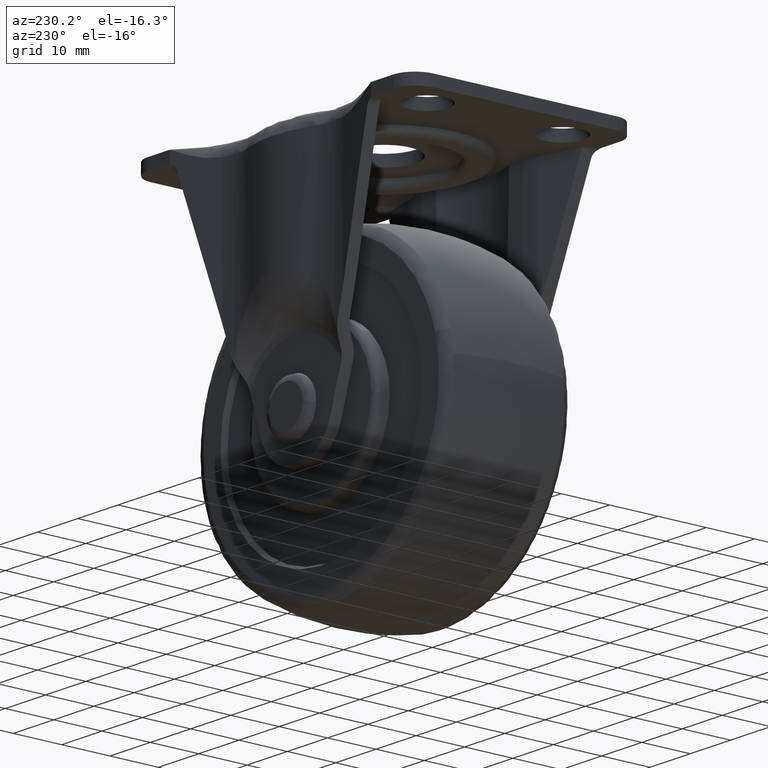
[diagram: clean part render]
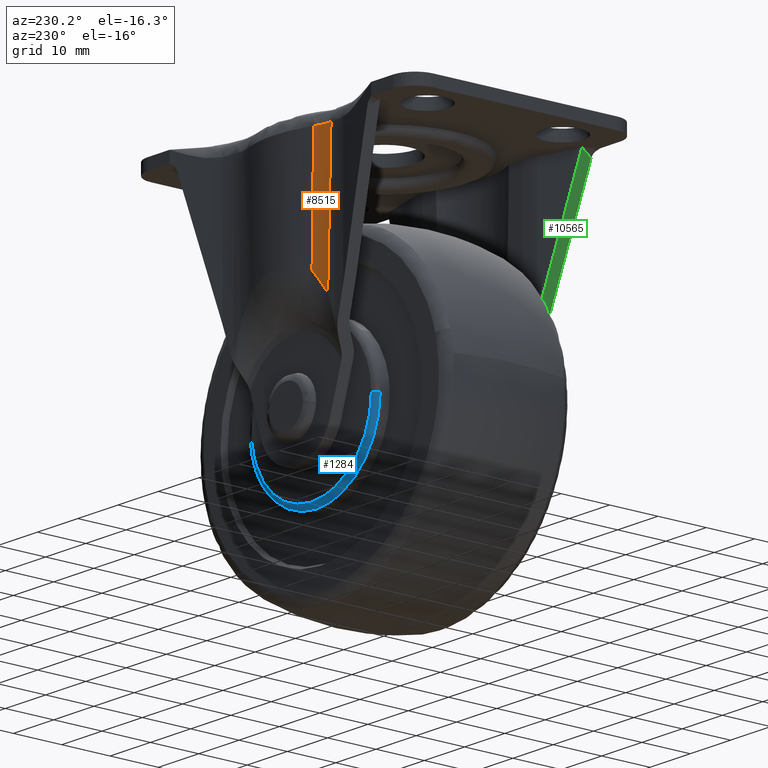
[diagram: same view with three faces highlighted in distinct colors, each labeled with its STEP entity id]
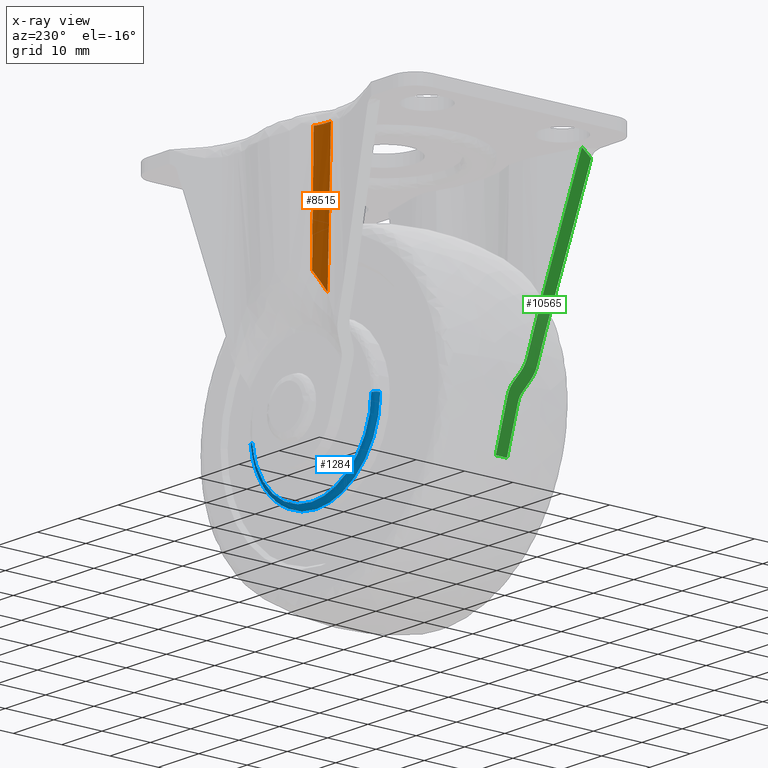
[diagram: x-ray of the same camera — body ghosted, the three highlighted faces saturated]
A machine part, auxiliary view with three faces highlighted in distinct colors.
The next image is the same camera in x-ray (body ghosted, the three faces saturated) — at least one of them is partly hidden behind the body in this view.
Their STEP definitions:

[orange] entity #8515 — the highlighted face is a freeform B-spline surface patch.
#4557=CARTESIAN_POINT('',(-11.561934130171460,20.599998000000049,44.500000000000000));
#4558=VERTEX_POINT('',#4557);
#4641=CARTESIAN_POINT('',(-8.028181929857791,21.244330268261450,44.470080181659107));
#4642=VERTEX_POINT('',#4641);
#4655=CARTESIAN_POINT('',(-11.561934130171460,20.599998000000049,44.500000000000000));
#4656=CARTESIAN_POINT('',(-10.358023529819670,20.600056693940779,44.491274623734590));
#4657=CARTESIAN_POINT('',(-9.154596717702514,20.819375814244129,44.481086099227788));
#4658=CARTESIAN_POINT('',(-8.028181929857791,21.244330268261450,44.470080181659107));
#4659=B_SPLINE_CURVE_WITH_KNOTS('',3,(#4655,#4656,#4657,#4658),.UNSPECIFIED.,.F.,.U.,(4,4),(0.000000014332358,3.611601034553802),.UNSPECIFIED.);
#4660=EDGE_CURVE('',#4558,#4642,#4659,.T.);
#7235=CARTESIAN_POINT('',(-7.544556676752640,21.166837346889700,20.666595368473949));
#7236=VERTEX_POINT('',#7235);
#7412=CARTESIAN_POINT('',(-10.734620166687920,20.599998000000049,16.391729945008951));
#7413=VERTEX_POINT('',#7412);
#7421=CARTESIAN_POINT('',(-7.544556676752640,21.166837346889700,20.666595368473949));
#7422=CARTESIAN_POINT('',(-7.795371917203379,21.074777466708039,20.305089059248790));
#7423=CARTESIAN_POINT('',(-8.052164150084492,20.992911542903119,19.946691303963050));
#7424=CARTESIAN_POINT('',(-8.574175598128923,20.851511220357182,19.233223201396680));
#7425=CARTESIAN_POINT('',(-8.839371733969863,20.791976264431330,18.878135705348960));
#7426=CARTESIAN_POINT('',(-9.374830763266772,20.696379916207508,18.168629164472659));
#7427=CARTESIAN_POINT('',(-9.645072002536605,20.660307963693239,17.814195360750830));
#7428=CARTESIAN_POINT('',(-10.188154108277390,20.612126959661939,17.104090254858662));
#7429=CARTESIAN_POINT('',(-10.460974156398890,20.599998000000049,16.748406057045720));
#7430=CARTESIAN_POINT('',(-10.734620166687920,20.599998000000049,16.391729945008951));
#7431=B_SPLINE_CURVE_WITH_KNOTS('',3,(#7421,#7422,#7423,#7424,#7425,#7426,#7427,#7428,#7429,#7430),.UNSPECIFIED.,.F.,.U.,(4,2,2,2,4),(0.0,0.250000000000000,0.500000000000000,0.750000000000000,1.0),.UNSPECIFIED.);
#7432=EDGE_CURVE('',#7236,#7413,#7431,.T.);
#8479=CARTESIAN_POINT('',(-11.770473089419269,20.601346423444088,45.197178526192793));
#8480=CARTESIAN_POINT('',(-10.901427680453549,20.601390013425998,15.665922846573828));
#8481=CARTESIAN_POINT('',(-9.756665704853257,20.564181688519561,45.256440768918772));
#8482=CARTESIAN_POINT('',(-8.887620295887539,20.564225278501485,15.725185089299796));
#8483=CARTESIAN_POINT('',(-7.885631629930292,21.310179740982782,45.311502636538378));
#8484=CARTESIAN_POINT('',(-7.016586220964573,21.310223330964700,15.780246956919402));
#8492=(BOUNDED_SURFACE()B_SPLINE_SURFACE(1,2,((#8479,#8481,#8483),(#8480,#8482,#8484)),.UNSPECIFIED.,.F.,.F.,.U.)B_SPLINE_SURFACE_WITH_KNOTS((2,2),(3,3),(0.0,29.544040040924880),(0.0,3.989942884884494),.UNSPECIFIED.)GEOMETRIC_REPRESENTATION_ITEM()RATIONAL_B_SPLINE_SURFACE(((0.997975400268469,0.977384512652586,0.996086507141195),(0.997975400268469,0.977384512652586,0.996086507141195)))REPRESENTATION_ITEM('')SURFACE());
#8493=CARTESIAN_POINT('',(-11.561934130171460,20.599998000000049,44.500000000000000));
#8494=CARTESIAN_POINT('',(-11.150290302221936,20.599998000000049,29.924386092934352));
#8495=CARTESIAN_POINT('',(-10.734620166687920,20.599998000000049,16.391729945008951));
#8503=(BOUNDED_CURVE()B_SPLINE_CURVE(2,(#8493,#8494,#8495),.UNSPECIFIED.,.F.,.U.)CURVE()GEOMETRIC_REPRESENTATION_ITEM()QUASI_UNIFORM_CURVE()RATIONAL_B_SPLINE_CURVE((1.0,0.999909722322717,1.0))REPRESENTATION_ITEM(''));
#8504=EDGE_CURVE('',#4558,#7413,#8503,.T.);
#8505=ORIENTED_EDGE('',*,*,#8504,.F.);
#8506=ORIENTED_EDGE('',*,*,#4660,.T.);
#8507=CARTESIAN_POINT('',(-7.544556676752640,21.166837346889700,20.666595368473949));
#8508=CARTESIAN_POINT('',(-8.028181929857791,21.244330268261450,44.470080181659107));
#8509=QUASI_UNIFORM_CURVE('',1,(#8507,#8508),.UNSPECIFIED.,.F.,.U.);
#8510=EDGE_CURVE('',#7236,#4642,#8509,.T.);
#8511=ORIENTED_EDGE('',*,*,#8510,.F.);
#8512=ORIENTED_EDGE('',*,*,#7432,.T.);
#8513=EDGE_LOOP('',(#8505,#8506,#8511,#8512));
#8514=FACE_OUTER_BOUND('',#8513,.T.);
#8515=ADVANCED_FACE('',(#8514),#8492,.F.);

[blue] entity #1284 — the highlighted face is a freeform B-spline surface patch.
#280=CARTESIAN_POINT('',(-12.102355352157110,14.000000000440309,-10.235010089399969));
#281=VERTEX_POINT('',#280);
#287=CARTESIAN_POINT('',(0.0,14.0,-15.849998000000051));
#288=VERTEX_POINT('',#287);
#289=CARTESIAN_POINT('',(-12.102355352157110,14.000000000440309,-10.235010089399969));
#290=CARTESIAN_POINT('',(-11.592925379942359,14.000000000393079,-10.837410106185891));
#291=CARTESIAN_POINT('',(-10.332707195686330,14.000000000292459,-12.119934785553021));
#292=CARTESIAN_POINT('',(-8.286995466890614,14.000000000176950,-13.594166374166001));
#293=CARTESIAN_POINT('',(-5.841098041654506,14.000000000081410,-14.810700857305120));
#294=CARTESIAN_POINT('',(-3.155716367790106,14.000000000016721,-15.637429024217139));
#295=CARTESIAN_POINT('',(-1.075830281838064,13.999999999999959,-15.850157354550110));
#296=CARTESIAN_POINT('',(0.0,14.0,-15.849998000000051));
#297=B_SPLINE_CURVE_WITH_KNOTS('',3,(#289,#290,#291,#292,#293,#294,#295,#296),.UNSPECIFIED.,.F.,.U.,(4,1,1,1,1,4),(0.000000062348022,2.366809367753298,5.379153376434996,7.530757317715683,10.543126570111291,13.770609616484711),.UNSPECIFIED.);
#298=EDGE_CURVE('',#281,#288,#297,.T.);
#300=CARTESIAN_POINT('',(15.743987488116799,14.000000001253859,-1.830107803935753));
#301=VERTEX_POINT('',#300);
#302=CARTESIAN_POINT('',(0.0,14.0,-15.849998000000051));
#303=CARTESIAN_POINT('',(1.141142202064945,14.0,-15.850192431465009));
#304=CARTESIAN_POINT('',(2.942832949893051,14.000000000017460,-15.654529660506819));
#305=CARTESIAN_POINT('',(5.488618511332461,14.000000000082609,-14.926557593791060));
#306=CARTESIAN_POINT('',(7.743605180257773,14.000000000172840,-13.917961596818561));
#307=CARTESIAN_POINT('',(10.147261869047970,14.000000000316909,-12.304771932241120));
#308=CARTESIAN_POINT('',(12.070266052312560,14.000000000489059,-10.385605982694090));
#309=CARTESIAN_POINT('',(13.822548358031780,14.000000000707050,-7.939564628020256));
#310=CARTESIAN_POINT('',(15.109932348337569,14.000000000952401,-5.202880231575397));
#311=CARTESIAN_POINT('',(15.619260557570970,14.000000001157780,-2.903954940033430));
#312=CARTESIAN_POINT('',(15.743987488116799,14.000000001253859,-1.830107803935753));
#313=B_SPLINE_CURVE_WITH_KNOTS('',3,(#302,#303,#304,#305,#306,#307,#308,#309,#310,#311,#312),.UNSPECIFIED.,.F.,.U.,(4,1,1,1,1,1,1,1,4),(0.000000191770784,3.423385169727744,5.405396912542365,7.927955748239622,10.810816775669450,14.054014963014470,16.036020912844482,19.819808024999030,23.063043920838659),.UNSPECIFIED.);
#314=EDGE_CURVE('',#288,#301,#313,.T.);
#432=CARTESIAN_POINT('',(-15.849998000000030,14.000000001242871,1.329732E-014));
#433=VERTEX_POINT('',#432);
#444=CARTESIAN_POINT('',(-15.849998000000030,14.000000001242871,1.329732E-014));
#445=CARTESIAN_POINT('',(-15.850054437280511,14.000000001174699,-0.869267001041705));
#446=CARTESIAN_POINT('',(-15.692333632879150,14.000000001024761,-2.781635548227410));
#447=CARTESIAN_POINT('',(-14.949939197750201,14.000000000808731,-5.536830444842117));
#448=CARTESIAN_POINT('',(-13.710623788875649,14.000000000607351,-8.103900401832249));
#449=CARTESIAN_POINT('',(-12.663722993297320,14.000000000492379,-9.571314024002165));
#450=CARTESIAN_POINT('',(-12.102355352157110,14.000000000440309,-10.235010089399969));
#451=B_SPLINE_CURVE_WITH_KNOTS('',3,(#444,#445,#446,#447,#448,#449,#450),.UNSPECIFIED.,.F.,.U.,(4,1,1,1,4),(0.000000049035384,2.607811468752139,5.737153831420167,8.518859104836903,11.126670524553530),.UNSPECIFIED.);
#452=EDGE_CURVE('',#433,#281,#451,.T.);
#1163=CARTESIAN_POINT('',(14.750675862214610,15.0,-1.714643576496306));
#1164=VERTEX_POINT('',#1163);
#1182=CARTESIAN_POINT('',(-14.849998000761261,15.0,1.905168E-015));
#1183=VERTEX_POINT('',#1182);
#1198=CARTESIAN_POINT('',(-14.849998000761261,15.0,1.905168E-015));
#1199=CARTESIAN_POINT('',(-14.964531479929001,15.000064449765580,2.047854E-015));
#1200=CARTESIAN_POINT('',(-15.209970188869260,14.957409409372151,2.787572E-015));
#1201=CARTESIAN_POINT('',(-15.539097167785760,14.760324088268190,5.198050E-015));
#1202=CARTESIAN_POINT('',(-15.787404796800789,14.425217961065449,8.907001E-015));
#1203=CARTESIAN_POINT('',(-15.850226046793461,14.147313547470850,1.180375E-014));
#1204=CARTESIAN_POINT('',(-15.849998000000030,14.000000001242871,1.329732E-014));
#1205=B_SPLINE_CURVE_WITH_KNOTS('',3,(#1198,#1199,#1200,#1201,#1202,#1203,#1204),.UNSPECIFIED.,.F.,.U.,(4,1,1,1,4),(0.000000757161007,0.343635985599351,0.736428528989942,1.129111887145325,1.570953882771372),.UNSPECIFIED.);
#1206=EDGE_CURVE('',#1183,#433,#1205,.T.);
#1211=CARTESIAN_POINT('',(14.750675862214610,15.0,-1.714643576496306));
#1212=CARTESIAN_POINT('',(14.864443827296340,15.000065619684250,-1.727868157634291));
#1213=CARTESIAN_POINT('',(15.108237393838641,14.957408906491720,-1.756207135126683));
#1214=CARTESIAN_POINT('',(15.435160445312899,14.760321611843819,-1.794209224886114));
#1215=CARTESIAN_POINT('',(15.681836053785201,14.425225331002130,-1.822883215827446));
#1216=CARTESIAN_POINT('',(15.744195825428969,14.147307329159750,-1.830132021413633));
#1217=CARTESIAN_POINT('',(15.743987488116799,14.000000001253859,-1.830107803935753));
#1218=B_SPLINE_CURVE_WITH_KNOTS('',3,(#1211,#1212,#1213,#1214,#1215,#1216,#1217),.UNSPECIFIED.,.F.,.U.,(4,1,1,1,4),(0.000000757222607,0.343635984669247,0.736428526960925,1.129111883897612,1.570953878278678),.UNSPECIFIED.);
#1219=EDGE_CURVE('',#1164,#301,#1218,.T.);
#1224=CARTESIAN_POINT('',(-14.780647541563383,14.997592358588729,2.639747E-015));
#1225=CARTESIAN_POINT('',(-14.780647541563381,14.997592358588731,-14.780647541563377));
#1226=CARTESIAN_POINT('',(-1.810047E-015,14.997592358588729,-14.780647541563383));
#1227=CARTESIAN_POINT('',(13.162043968610359,14.997592358588738,-14.780647541563383));
#1228=CARTESIAN_POINT('',(14.681789231815017,14.997592358588726,-1.706636077341727));
#1229=CARTESIAN_POINT('',(-15.927737255922706,15.077335549155372,2.709984E-015));
#1230=CARTESIAN_POINT('',(-15.927737255922709,15.077335549155370,-15.927737255922706));
#1231=CARTESIAN_POINT('',(-1.950521E-015,15.077335549155372,-15.927737255922706));
#1232=CARTESIAN_POINT('',(14.183517839351284,15.077335549155370,-15.927737255922706));
#1233=CARTESIAN_POINT('',(15.821206795818789,15.077335549155373,-1.839083907179241));
#1234=CARTESIAN_POINT('',(-15.847564305950563,13.930275791634665,2.705075E-015));
#1235=CARTESIAN_POINT('',(-15.847564305950565,13.930275791634662,-15.847564305950565));
#1236=CARTESIAN_POINT('',(-1.940703E-015,13.930275791634665,-15.847564305950563));
#1237=CARTESIAN_POINT('',(14.112124492770278,13.930275791634656,-15.847564305950563));
#1238=CARTESIAN_POINT('',(15.741570071495728,13.930275791634662,-1.829826799297828));
#1246=(BOUNDED_SURFACE()B_SPLINE_SURFACE(2,2,((#1224,#1229,#1234),(#1225,#1230,#1235),(#1226,#1231,#1236),(#1227,#1232,#1237),(#1228,#1233,#1238)),.UNSPECIFIED.,.F.,.F.,.U.)B_SPLINE_SURFACE_WITH_KNOTS((3,2,3),(3,3),(0.0,26.257104264417951,50.413640187682468),(0.0,1.822370214151249),.UNSPECIFIED.)GEOMETRIC_REPRESENTATION_ITEM()RATIONAL_B_SPLINE_SURFACE(((0.915966572560864,0.599412953101705,0.910892951216569),(0.647686174797987,0.423848963869270,0.644098582740263),(0.915966572560864,0.599412953101705,0.910892951216569),(0.669148606619017,0.437894083007864,0.665442132218368),(0.876475698010168,0.573569933886690,0.871620820176857)))REPRESENTATION_ITEM('')SURFACE());
#1247=CARTESIAN_POINT('',(0.0,15.0,-14.849998000000021));
#1248=VERTEX_POINT('',#1247);
#1249=CARTESIAN_POINT('',(0.0,15.0,-14.849998000000021));
#1250=CARTESIAN_POINT('',(0.844045544589477,15.000000000000011,-14.850063589847631));
#1251=CARTESIAN_POINT('',(2.475837228092245,15.000000000000011,-14.710450657235070));
#1252=CARTESIAN_POINT('',(5.320062867947098,15.0,-13.984347490664630));
#1253=CARTESIAN_POINT('',(7.658811440467137,15.000000000000030,-12.824501696818549));
#1254=CARTESIAN_POINT('',(9.779133114691225,14.999999999999970,-11.237890645927630));
#1255=CARTESIAN_POINT('',(11.306757859500680,15.000000000000060,-9.730677420502289));
#1256=CARTESIAN_POINT('',(12.996774589695850,14.999999999999920,-7.399951219665566));
#1257=CARTESIAN_POINT('',(14.206317229724780,15.000000000000190,-4.710483538446766));
#1258=CARTESIAN_POINT('',(14.646757574883919,14.999999999999771,-2.608936437799956));
#1259=CARTESIAN_POINT('',(14.750675862214610,15.0,-1.714643576496306));
#1260=B_SPLINE_CURVE_WITH_KNOTS('',3,(#1249,#1250,#1251,#1252,#1253,#1254,#1255,#1256,#1257,#1258,#1259),.UNSPECIFIED.,.F.,.U.,(4,1,1,1,1,1,1,1,4),(0.000000208960024,2.532138759945369,4.895551193969741,8.778287800723041,10.297575234808470,12.829675418670600,15.193092551522890,18.906982467884170,21.607962107275011),.UNSPECIFIED.);
#1261=EDGE_CURVE('',#1248,#1164,#1260,.T.);
#1262=ORIENTED_EDGE('',*,*,#1261,.T.);
#1263=ORIENTED_EDGE('',*,*,#1219,.T.);
#1264=ORIENTED_EDGE('',*,*,#314,.F.);
#1265=ORIENTED_EDGE('',*,*,#298,.F.);
#1266=ORIENTED_EDGE('',*,*,#452,.F.);
#1267=ORIENTED_EDGE('',*,*,#1206,.F.);
#1268=CARTESIAN_POINT('',(-14.849998000761261,15.0,1.905168E-015));
#1269=CARTESIAN_POINT('',(-14.850785285699200,15.000000000000041,-1.518749509312704));
#1270=CARTESIAN_POINT('',(-14.483256055599350,14.999999999999970,-3.887305993292944));
#1271=CARTESIAN_POINT('',(-13.246408374518531,15.000000000000030,-6.872722768588530));
#1272=CARTESIAN_POINT('',(-11.648304127066609,14.999999999999959,-9.396938735233764));
#1273=CARTESIAN_POINT('',(-9.625333249857938,15.000000000000099,-11.445006713489169));
#1274=CARTESIAN_POINT('',(-7.244752415393132,14.999999999999829,-13.035233504573460));
#1275=CARTESIAN_POINT('',(-5.027487507690958,15.000000000000050,-14.050908908149481));
#1276=CARTESIAN_POINT('',(-2.551280194443494,15.000000000000179,-14.703510862293941));
#1277=CARTESIAN_POINT('',(-0.850425227439966,14.999999999999829,-14.850060675252770));
#1278=CARTESIAN_POINT('',(0.0,15.0,-14.849998000000021));
#1279=B_SPLINE_CURVE_WITH_KNOTS('',3,(#1268,#1269,#1270,#1271,#1272,#1273,#1274,#1275,#1276,#1277,#1278),.UNSPECIFIED.,.F.,.U.,(4,1,1,1,1,1,1,1,4),(0.000000221291735,4.555931279529982,7.107290159003117,9.658678236384741,13.485550530327149,15.672440354213229,18.223805548487299,20.775189178609502,23.326468674927789),.UNSPECIFIED.);
#1280=EDGE_CURVE('',#1183,#1248,#1279,.T.);
#1281=ORIENTED_EDGE('',*,*,#1280,.T.);
#1282=EDGE_LOOP('',(#1262,#1263,#1264,#1265,#1266,#1267,#1281));
#1283=FACE_OUTER_BOUND('',#1282,.T.);
#1284=ADVANCED_FACE('',(#1283),#1246,.T.);

[green] entity #10565 — the highlighted face is a freeform B-spline surface patch.
#5584=CARTESIAN_POINT('',(-24.074129969032750,-20.885428737203551,45.200000000000003));
#5585=VERTEX_POINT('',#5584);
#5591=CARTESIAN_POINT('',(-23.861917600039838,-22.018354322972058,44.536860621387703));
#5592=VERTEX_POINT('',#5591);
#5593=CARTESIAN_POINT('',(-23.861917600039838,-22.018354322972058,44.536860621387703));
#5594=CARTESIAN_POINT('',(-24.074129969032750,-20.885428737203551,45.200000000000003));
#5595=QUASI_UNIFORM_CURVE('',1,(#5593,#5594),.UNSPECIFIED.,.F.,.U.);
#5596=EDGE_CURVE('',#5592,#5585,#5595,.T.);
#5598=CARTESIAN_POINT('',(-23.649706191082149,-23.151279908740602,43.873724242775452));
#5599=VERTEX_POINT('',#5598);
#5600=CARTESIAN_POINT('',(-23.649706191082149,-23.151279908740602,43.873724242775452));
#5601=CARTESIAN_POINT('',(-23.861917600039838,-22.018354322972058,44.536860621387703));
#5602=QUASI_UNIFORM_CURVE('',1,(#5600,#5601),.UNSPECIFIED.,.F.,.U.);
#5603=EDGE_CURVE('',#5599,#5592,#5602,.T.);
#6613=CARTESIAN_POINT('',(-13.616422870102500,-18.350761343643399,12.520861549183820));
#6614=VERTEX_POINT('',#6613);
#6615=CARTESIAN_POINT('',(-12.756964477174700,-17.567463655549350,9.835152382776080));
#6616=VERTEX_POINT('',#6615);
#6617=CARTESIAN_POINT('',(-13.616422870102500,-18.350761343643399,12.520861549183820));
#6618=CARTESIAN_POINT('',(-13.447437193850719,-18.339691084421251,11.992800640784280));
#6619=CARTESIAN_POINT('',(-13.147942950109710,-18.179389488080400,11.056915387559309));
#6620=CARTESIAN_POINT('',(-12.870935572392820,-17.782400375693619,10.191299018438160));
#6621=CARTESIAN_POINT('',(-12.756964477174700,-17.567463655549350,9.835152382776080));
#6622=B_SPLINE_CURVE_WITH_KNOTS('',3,(#6617,#6618,#6619,#6620,#6621),.UNSPECIFIED.,.F.,.U.,(4,1,4),(0.000000035101016,1.663597165024435,2.957533942752459),.UNSPECIFIED.);
#6623=EDGE_CURVE('',#6614,#6616,#6622,.T.);
#8140=CARTESIAN_POINT('',(-12.478782420146320,-19.860558547779050,8.965865275175490));
#8141=VERTEX_POINT('',#8140);
#8149=CARTESIAN_POINT('',(-13.354113731729299,-20.636532552938199,11.701175496713580));
#8150=VERTEX_POINT('',#8149);
#8158=CARTESIAN_POINT('',(-12.478782420146320,-19.860558547779050,8.965865275175490));
#8159=CARTESIAN_POINT('',(-12.645546835177750,-20.164601601672700,9.486984996346216));
#8160=CARTESIAN_POINT('',(-12.935105318883799,-20.516033360351319,10.391822135991379));
#8161=CARTESIAN_POINT('',(-13.239676885052811,-20.628622590482301,11.343573441020130));
#8162=CARTESIAN_POINT('',(-13.354113731729299,-20.636532552938199,11.701175496713580));
#8163=B_SPLINE_CURVE_WITH_KNOTS('',3,(#8158,#8159,#8160,#8161,#8162),.UNSPECIFIED.,.F.,.U.,(4,1,4),(0.000000031400057,1.877727637989073,3.004386389801829),.UNSPECIFIED.);
#8164=EDGE_CURVE('',#8141,#8150,#8163,.T.);
#8624=CARTESIAN_POINT('',(-11.804392948750920,-18.645725742820201,6.858475318943340));
#8625=VERTEX_POINT('',#8624);
#8641=CARTESIAN_POINT('',(-11.309773367639700,-18.277301962578051,5.312845706380180));
#8642=VERTEX_POINT('',#8641);
#8643=CARTESIAN_POINT('',(-11.309773367639700,-18.277301962578051,5.312845706380180));
#8644=CARTESIAN_POINT('',(-11.480582141489490,-18.262695215240949,5.846603586233488));
#8645=CARTESIAN_POINT('',(-11.652232287091310,-18.390811905828421,6.382990656569178));
#8646=CARTESIAN_POINT('',(-11.804392948750920,-18.645725742820201,6.858475318943340));
#8647=B_SPLINE_CURVE_WITH_KNOTS('',3,(#8643,#8644,#8645,#8646),.UNSPECIFIED.,.F.,.U.,(4,4),(0.000000028544602,1.681366455644575),.UNSPECIFIED.);
#8648=EDGE_CURVE('',#8642,#8625,#8647,.T.);
#8890=CARTESIAN_POINT('',(-11.491821781271900,-15.977301962578050,5.881726174876610));
#8891=VERTEX_POINT('',#8890);
#8909=CARTESIAN_POINT('',(-12.201338597335541,-16.529937632941252,8.098885065059911));
#8910=VERTEX_POINT('',#8909);
#8911=CARTESIAN_POINT('',(-12.201338597335541,-16.529937632941252,8.098885065059911));
#8912=CARTESIAN_POINT('',(-12.147095322870101,-16.431440730978110,7.929381037120264));
#8913=CARTESIAN_POINT('',(-12.091258109665169,-16.348558363316130,7.754896132946767));
#8914=CARTESIAN_POINT('',(-11.976901429980551,-16.209069503423400,7.397544589932921));
#8915=CARTESIAN_POINT('',(-11.918377071921290,-16.152510930058540,7.214662665466010));
#8916=CARTESIAN_POINT('',(-11.828774918361161,-16.085459202543039,6.934666184977255));
#8917=CARTESIAN_POINT('',(-11.798603561708079,-16.066086396916379,6.840384146669280));
#8918=CARTESIAN_POINT('',(-11.737673271327180,-16.033096805114099,6.649983958906340));
#8919=CARTESIAN_POINT('',(-11.707067627733339,-16.019568669693900,6.554344823585600));
#8920=CARTESIAN_POINT('',(-11.615149112783859,-15.987476798713571,6.267109978718445));
#8921=CARTESIAN_POINT('',(-11.553605449806049,-15.977301962578050,6.074793071752440));
#8922=CARTESIAN_POINT('',(-11.491821781271900,-15.977301962578050,5.881726174876610));
#8923=B_SPLINE_CURVE_WITH_KNOTS('',3,(#8911,#8912,#8913,#8914,#8915,#8916,#8917,#8918,#8919,#8920,#8921,#8922),.UNSPECIFIED.,.F.,.U.,(4,2,2,2,2,4),(0.0,0.250000000000000,0.500000000000000,0.625000000000000,0.749999999999999,1.0),.UNSPECIFIED.);
#8924=EDGE_CURVE('',#8910,#8891,#8923,.T.);
#9155=CARTESIAN_POINT('',(-12.201338597335541,-16.529937632941252,8.098885065059911));
#9156=CARTESIAN_POINT('',(-12.756964477174700,-17.567463655549350,9.835152382776080));
#9157=QUASI_UNIFORM_CURVE('',1,(#9155,#9156),.UNSPECIFIED.,.F.,.U.);
#9158=EDGE_CURVE('',#8910,#6616,#9157,.T.);
#9302=CARTESIAN_POINT('',(-15.575529882229400,-18.690697109554151,18.642846864282951));
#9303=VERTEX_POINT('',#9302);
#9304=CARTESIAN_POINT('',(-13.616422870102500,-18.350761343643399,12.520861549183820));
#9305=CARTESIAN_POINT('',(-14.609760203793401,-18.441290708895320,15.624927091368537));
#9306=CARTESIAN_POINT('',(-15.575529882229400,-18.690697109554151,18.642846864282951));
#9314=(BOUNDED_CURVE()B_SPLINE_CURVE(2,(#9304,#9305,#9306),.UNSPECIFIED.,.F.,.U.)CURVE()GEOMETRIC_REPRESENTATION_ITEM()QUASI_UNIFORM_CURVE()RATIONAL_B_SPLINE_CURVE((1.0,0.996727797190124,1.0))REPRESENTATION_ITEM(''));
#9315=EDGE_CURVE('',#6614,#9303,#9314,.T.);
#9345=CARTESIAN_POINT('',(-24.074129969032750,-20.885428737203551,45.200000000000003));
#9346=CARTESIAN_POINT('',(-15.575529882229400,-18.690697109554151,18.642846864282951));
#9347=QUASI_UNIFORM_CURVE('',1,(#9345,#9346),.UNSPECIFIED.,.F.,.U.);
#9348=EDGE_CURVE('',#5585,#9303,#9347,.T.);
#10040=CARTESIAN_POINT('',(-11.804392948750920,-18.645725742820201,6.858475318943340));
#10041=CARTESIAN_POINT('',(-12.031161371967510,-19.038734216193902,7.567100701970747));
#10042=CARTESIAN_POINT('',(-12.255996884529150,-19.443749001621509,8.269685960302727));
#10043=CARTESIAN_POINT('',(-12.478782420146320,-19.860558547779050,8.965865275175490));
#10044=B_SPLINE_CURVE_WITH_KNOTS('',3,(#10040,#10041,#10042,#10043),.UNSPECIFIED.,.F.,.U.,(4,4),(2.181721E-011,2.524336332572926),.UNSPECIFIED.);
#10045=EDGE_CURVE('',#8625,#8141,#10044,.T.);
#10267=CARTESIAN_POINT('',(-15.000431000000001,-20.917636999999900,16.845728641569949));
#10268=VERTEX_POINT('',#10267);
#10274=CARTESIAN_POINT('',(-13.354113731729299,-20.636532552938199,11.701175496713580));
#10275=CARTESIAN_POINT('',(-13.903510070962280,-20.682909845838790,13.417976212618459));
#10276=CARTESIAN_POINT('',(-14.452535187852270,-20.776655236702162,15.133616901164610));
#10277=CARTESIAN_POINT('',(-15.000431000000001,-20.917636999999900,16.845728641569949));
#10278=B_SPLINE_CURVE_WITH_KNOTS('',3,(#10274,#10275,#10276,#10277),.UNSPECIFIED.,.F.,.U.,(4,4),(6.077627E-011,5.409488372607522),.UNSPECIFIED.);
#10279=EDGE_CURVE('',#8150,#10268,#10278,.T.);
#10298=CARTESIAN_POINT('',(-23.649706191082149,-23.151279908740602,43.873724242775452));
#10299=CARTESIAN_POINT('',(-15.000431000000001,-20.917636999999900,16.845728641569949));
#10300=QUASI_UNIFORM_CURVE('',1,(#10298,#10299),.UNSPECIFIED.,.F.,.U.);
#10301=EDGE_CURVE('',#5599,#10268,#10300,.T.);
#10527=CARTESIAN_POINT('',(-7.801390110594265,-23.509619621837651,-5.650450655901942));
#10528=CARTESIAN_POINT('',(-24.848284702456802,-23.509619621837651,47.619144988150310));
#10529=CARTESIAN_POINT('',(-7.801390110594265,-15.618961608077379,-5.650450655901942));
#10530=CARTESIAN_POINT('',(-24.848284702456809,-15.618961608077379,47.619144988150310));
#10531=B_SPLINE_SURFACE_WITH_KNOTS('',1,1,((#10527,#10529),(#10528,#10530)),.UNSPECIFIED.,.F.,.F.,.U.,(2,2),(2,2),(0.0,55.930728900193166),(0.0,7.890658013760270),.UNSPECIFIED.);
#10532=ORIENTED_EDGE('',*,*,#10301,.F.);
#10533=ORIENTED_EDGE('',*,*,#5603,.T.);
#10534=ORIENTED_EDGE('',*,*,#5596,.T.);
#10535=ORIENTED_EDGE('',*,*,#9348,.T.);
#10536=ORIENTED_EDGE('',*,*,#9315,.F.);
#10537=ORIENTED_EDGE('',*,*,#6623,.T.);
#10538=ORIENTED_EDGE('',*,*,#9158,.F.);
#10539=ORIENTED_EDGE('',*,*,#8924,.T.);
#10540=CARTESIAN_POINT('',(-8.575544566882060,-15.977301962578050,-3.231306533770900));
#10541=VERTEX_POINT('',#10540);
#10542=CARTESIAN_POINT('',(-8.575544566882060,-15.977301962578050,-3.231306533770900));
#10543=CARTESIAN_POINT('',(-11.491821781271900,-15.977301962578050,5.881726174876610));
#10544=QUASI_UNIFORM_CURVE('',1,(#10542,#10543),.UNSPECIFIED.,.F.,.U.);
#10545=EDGE_CURVE('',#10541,#8891,#10544,.T.);
#10546=ORIENTED_EDGE('',*,*,#10545,.F.);
#10547=CARTESIAN_POINT('',(-8.575544566882060,-18.277301962578051,-3.231306533770900));
#10548=VERTEX_POINT('',#10547);
#10549=CARTESIAN_POINT('',(-8.575544566882060,-18.277301962578051,-3.231306533770900));
#10550=CARTESIAN_POINT('',(-8.575544566882060,-15.977301962578050,-3.231306533770900));
#10551=QUASI_UNIFORM_CURVE('',1,(#10549,#10550),.UNSPECIFIED.,.F.,.U.);
#10552=EDGE_CURVE('',#10548,#10541,#10551,.T.);
#10553=ORIENTED_EDGE('',*,*,#10552,.F.);
#10554=CARTESIAN_POINT('',(-8.575544566882060,-18.277301962578051,-3.231306533770900));
#10555=CARTESIAN_POINT('',(-11.309773367639700,-18.277301962578051,5.312845706380180));
#10556=QUASI_UNIFORM_CURVE('',1,(#10554,#10555),.UNSPECIFIED.,.F.,.U.);
#10557=EDGE_CURVE('',#10548,#8642,#10556,.T.);
#10558=ORIENTED_EDGE('',*,*,#10557,.T.);
#10559=ORIENTED_EDGE('',*,*,#8648,.T.);
#10560=ORIENTED_EDGE('',*,*,#10045,.T.);
#10561=ORIENTED_EDGE('',*,*,#8164,.T.);
#10562=ORIENTED_EDGE('',*,*,#10279,.T.);
#10563=EDGE_LOOP('',(#10532,#10533,#10534,#10535,#10536,#10537,#10538,#10539,#10546,#10553,#10558,#10559,#10560,#10561,#10562));
#10564=FACE_OUTER_BOUND('',#10563,.T.);
#10565=ADVANCED_FACE('',(#10564),#10531,.T.);